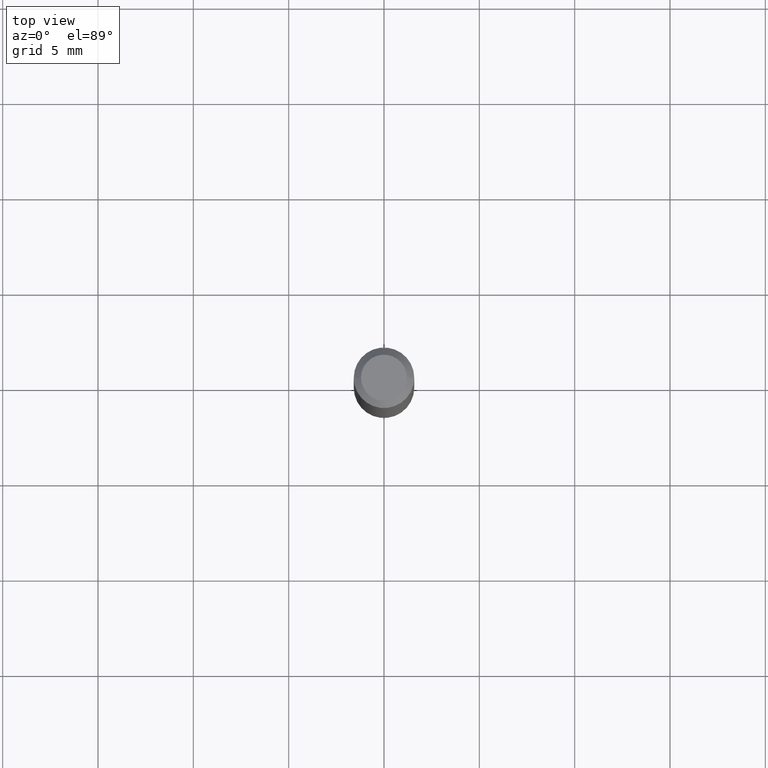
[diagram: clean part render]
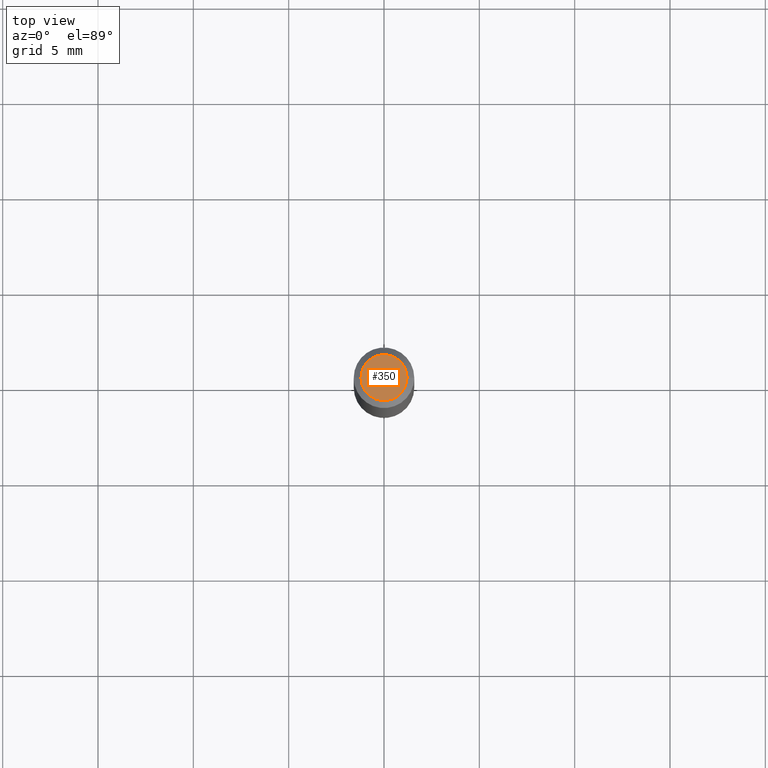
[diagram: same view with one face highlighted and labeled with its STEP entity id]
A machine part, top view. The second image highlights one B-rep face of the part: STEP entity #350.
In plain terms, the highlighted planar face has unit normal (0, -0, -1).
Its self-contained STEP definition (entity closure, byte-faithful):
#20 = ORIENTED_EDGE ( 'NONE', *, *, #131, .T. ) ;
#88 = ORIENTED_EDGE ( 'NONE', *, *, #184, .T. ) ;
#116 = FACE_OUTER_BOUND ( 'NONE', #186, .T. ) ;
#117 = CARTESIAN_POINT ( 'NONE',  ( 6.093689898318465335E-45, -8.700174179635472181E-31, -2.491828921680032634E-16 ) ) ;
#131 = EDGE_CURVE ( 'NONE', #160, #421, #190, .T. ) ;
#160 = VERTEX_POINT ( 'NONE', #446 ) ;
#176 = AXIS2_PLACEMENT_3D ( 'NONE', #228, #437, #290 ) ;
#184 = EDGE_CURVE ( 'NONE', #421, #160, #333, .T. ) ;
#186 = EDGE_LOOP ( 'NONE', ( #20, #88 ) ) ;
#189 = DIRECTION ( 'NONE',  ( 1.000000000000000000, -6.982962677686267499E-15, 4.852736867747366768E-29 ) ) ;
#190 = CIRCLE ( 'NONE', #311, 0.04749999999999999362 ) ;
#200 = AXIS2_PLACEMENT_3D ( 'NONE', #117, #401, #189 ) ;
#228 = CARTESIAN_POINT ( 'NONE',  ( 3.316907271900976096E-16, 0.04749999999999999362, -2.904368096790510281E-16 ) ) ;
#252 = PLANE ( 'NONE',  #176 ) ;
#290 = DIRECTION ( 'NONE',  ( -1.000000000000000000, 6.982962677686265922E-15, -4.876176775795935793E-29 ) ) ;
#297 = CARTESIAN_POINT ( 'NONE',  ( 0.04749999999999999362, -4.035134999187582567E-16, -2.491828921680006996E-16 ) ) ;
#311 = AXIS2_PLACEMENT_3D ( 'NONE', #384, #335, #378 ) ;
#333 = CIRCLE ( 'NONE', #200, 0.04749999999999999362 ) ;
#335 = DIRECTION ( 'NONE',  ( -2.445468806185136597E-29, 3.491481338843145583E-15, 1.000000000000000000 ) ) ;
#350 = ADVANCED_FACE ( 'NONE', ( #116 ), #252, .F. ) ;
#378 = DIRECTION ( 'NONE',  ( 1.000000000000000000, -6.982962677686267499E-15, 4.852736867747366768E-29 ) ) ;
#384 = CARTESIAN_POINT ( 'NONE',  ( 6.093689898318465335E-45, -8.700174179635472181E-31, -2.491828921680032634E-16 ) ) ;
#401 = DIRECTION ( 'NONE',  ( -2.445468806185136597E-29, 3.491481338843145583E-15, 1.000000000000000000 ) ) ;
#421 = VERTEX_POINT ( 'NONE', #297 ) ;
#437 = DIRECTION ( 'NONE',  ( 2.438088387897960049E-29, -3.491481338843145188E-15, -1.000000000000000000 ) ) ;
#446 = CARTESIAN_POINT ( 'NONE',  ( -0.04749999999999999362, 3.578768372314206562E-16, -2.491828921680056300E-16 ) ) ;